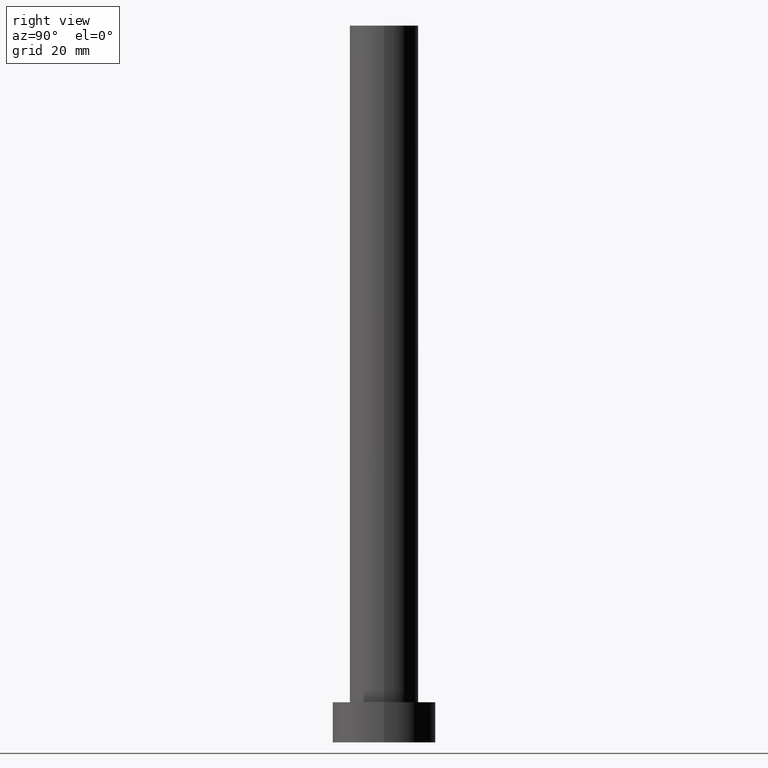
[diagram: clean part render]
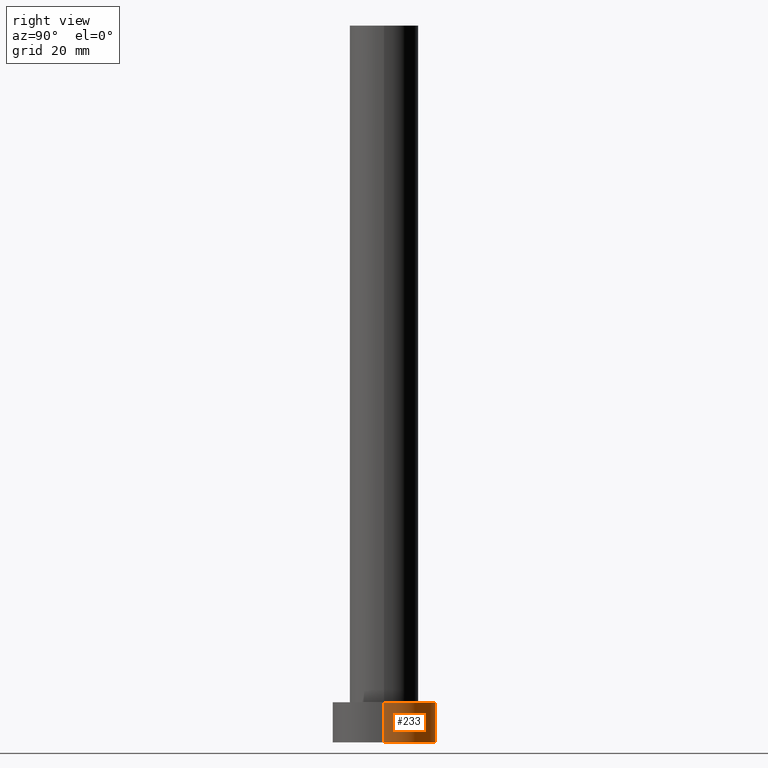
[diagram: same view with one face highlighted and labeled with its STEP entity id]
A machine part, right view. The second image highlights one B-rep face of the part: STEP entity #233.
In plain terms, the highlighted cylindrical surface (partial cylindrical patch) has radius 9 mm, axis along (-0, -0, -1).
Its self-contained STEP definition (entity closure, byte-faithful):
#2 = VECTOR ( 'NONE', #173, 1000.000000000000000 ) ;
#5 = AXIS2_PLACEMENT_3D ( 'NONE', #253, #177, #131 ) ;
#28 = DIRECTION ( 'NONE',  ( 1.000000000000000000, 0.000000000000000000, 0.000000000000000000 ) ) ;
#33 = CARTESIAN_POINT ( 'NONE',  ( 0.000000000000000000, 0.000000000000000000, 0.000000000000000000 ) ) ;
#41 = CARTESIAN_POINT ( 'NONE',  ( -9.000000000000000000, 0.000000000000000000, 0.000000000000000000 ) ) ;
#48 = EDGE_LOOP ( 'NONE', ( #199, #220, #197, #51 ) ) ;
#51 = ORIENTED_EDGE ( 'NONE', *, *, #103, .F. ) ;
#52 = CARTESIAN_POINT ( 'NONE',  ( -9.000000000000000000, 0.000000000000000000, 7.000000000000000000 ) ) ;
#53 = CIRCLE ( 'NONE', #252, 9.000000000000000000 ) ;
#60 = VERTEX_POINT ( 'NONE', #111 ) ;
#69 = DIRECTION ( 'NONE',  ( 0.000000000000000000, 0.000000000000000000, 1.000000000000000000 ) ) ;
#71 = LINE ( 'NONE', #247, #217 ) ;
#76 = FACE_OUTER_BOUND ( 'NONE', #48, .T. ) ;
#77 = VERTEX_POINT ( 'NONE', #170 ) ;
#80 = EDGE_CURVE ( 'NONE', #77, #60, #212, .T. ) ;
#97 = CIRCLE ( 'NONE', #240, 9.000000000000000000 ) ;
#103 = EDGE_CURVE ( 'NONE', #178, #254, #71, .T. ) ;
#111 = CARTESIAN_POINT ( 'NONE',  ( 9.000000000000000000, 1.102182119232617714E-15, 0.000000000000000000 ) ) ;
#119 = EDGE_CURVE ( 'NONE', #60, #254, #53, .T. ) ;
#131 = DIRECTION ( 'NONE',  ( -1.000000000000000000, 0.000000000000000000, 0.000000000000000000 ) ) ;
#147 = DIRECTION ( 'NONE',  ( -0.000000000000000000, -0.000000000000000000, -1.000000000000000000 ) ) ;
#148 = CARTESIAN_POINT ( 'NONE',  ( 0.000000000000000000, 0.000000000000000000, 7.000000000000000000 ) ) ;
#160 = EDGE_CURVE ( 'NONE', #77, #178, #97, .T. ) ;
#170 = CARTESIAN_POINT ( 'NONE',  ( 9.000000000000000000, 1.102182119232617714E-15, 7.000000000000000000 ) ) ;
#173 = DIRECTION ( 'NONE',  ( -0.000000000000000000, -0.000000000000000000, -1.000000000000000000 ) ) ;
#175 = CYLINDRICAL_SURFACE ( 'NONE', #5, 9.000000000000000000 ) ;
#177 = DIRECTION ( 'NONE',  ( -0.000000000000000000, -0.000000000000000000, -1.000000000000000000 ) ) ;
#178 = VERTEX_POINT ( 'NONE', #52 ) ;
#193 = DIRECTION ( 'NONE',  ( 0.000000000000000000, 0.000000000000000000, 1.000000000000000000 ) ) ;
#197 = ORIENTED_EDGE ( 'NONE', *, *, #119, .T. ) ;
#199 = ORIENTED_EDGE ( 'NONE', *, *, #160, .F. ) ;
#212 = LINE ( 'NONE', #218, #2 ) ;
#217 = VECTOR ( 'NONE', #147, 1000.000000000000000 ) ;
#218 = CARTESIAN_POINT ( 'NONE',  ( 9.000000000000000000, 1.102182119232617714E-15, 7.000000000000000000 ) ) ;
#220 = ORIENTED_EDGE ( 'NONE', *, *, #80, .T. ) ;
#230 = DIRECTION ( 'NONE',  ( 1.000000000000000000, 0.000000000000000000, 0.000000000000000000 ) ) ;
#233 = ADVANCED_FACE ( 'NONE', ( #76 ), #175, .T. ) ;
#240 = AXIS2_PLACEMENT_3D ( 'NONE', #148, #69, #28 ) ;
#247 = CARTESIAN_POINT ( 'NONE',  ( -9.000000000000000000, 0.000000000000000000, 7.000000000000000000 ) ) ;
#252 = AXIS2_PLACEMENT_3D ( 'NONE', #33, #193, #230 ) ;
#253 = CARTESIAN_POINT ( 'NONE',  ( 0.000000000000000000, 0.000000000000000000, 7.000000000000000000 ) ) ;
#254 = VERTEX_POINT ( 'NONE', #41 ) ;